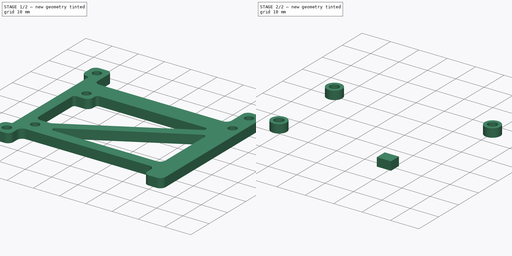
[diagram: build sequence overview — one tinted view per stage of 2, left to right]
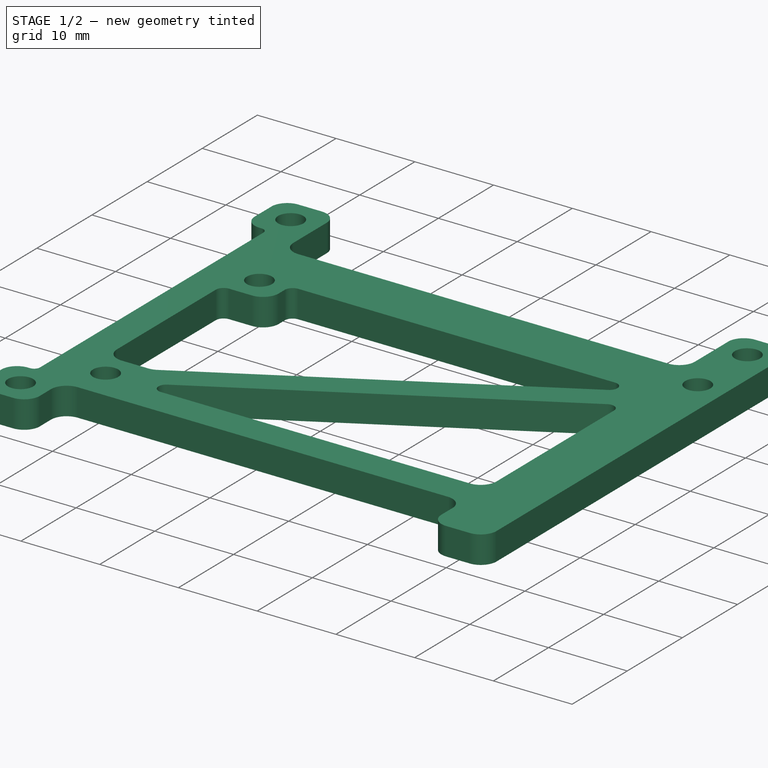
[diagram: stage 1 of 2 — iso view after this stage's code; geometry added in this stage tinted green]
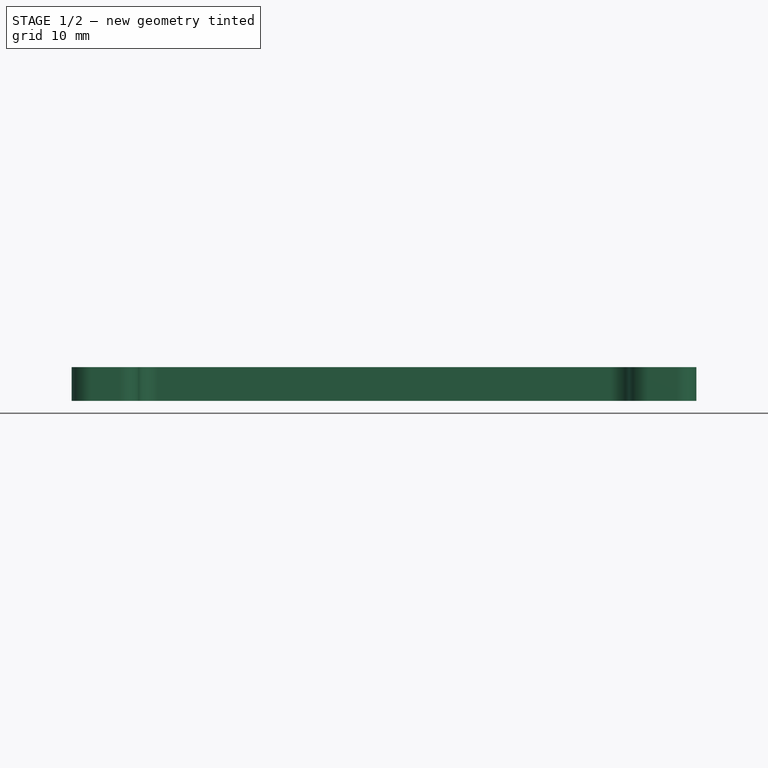
[diagram: stage 1 of 2 — front view after this stage's code; geometry added in this stage tinted green]
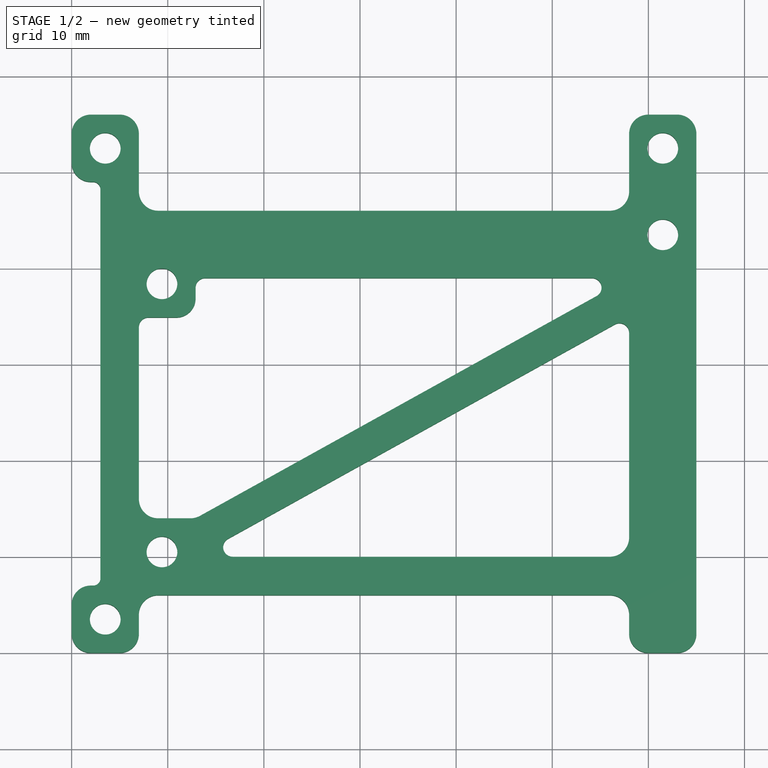
[diagram: stage 1 of 2 — top view after this stage's code; geometry added in this stage tinted green]
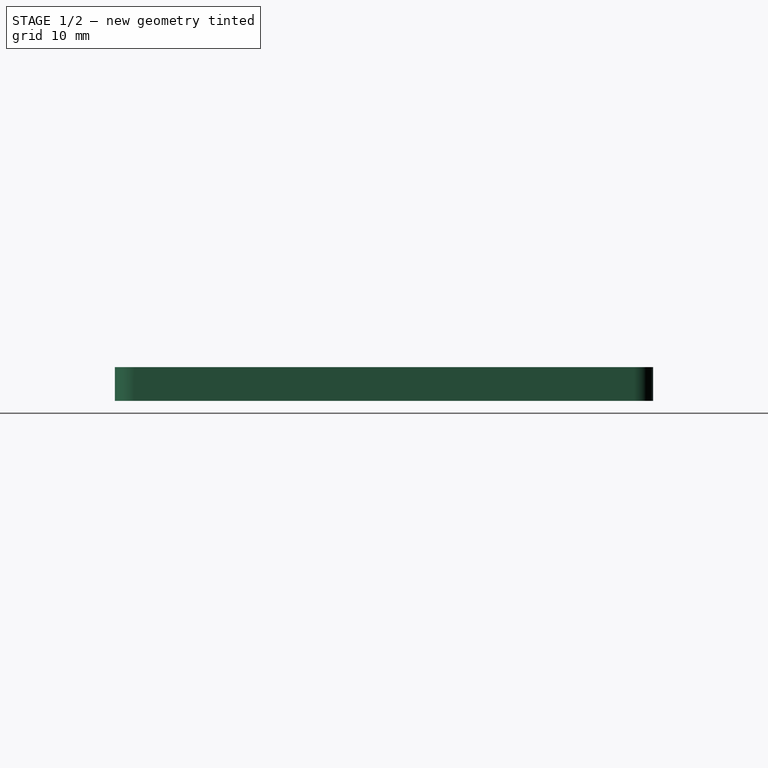
[diagram: stage 1 of 2 — right view after this stage's code; geometry added in this stage tinted green]
FCSTD DOCUMENT  (FreeCAD 0.18R16146 (Git))
Label: raspiMountArduino
License: All rights reserved
LicenseURL: http://en.wikipedia.org/wiki/All_rights_reserved
objects: Sketcher::SketchObject×2, Part::Extrusion×2, Part::Fillet×1
note: 5 computed .brp shape members not serialized (recipe doc carries the construction recipe); baked Part::Feature solids carry a one-line shape summary decoded from their .brp

FEATURE [Sketcher::SketchObject] Sketch
  sketch-geometry (38):
    g0: LineSegment StartX=0 StartY=0 StartZ=0 EndX=7 EndY=0 EndZ=0
    g1: LineSegment StartX=65 StartY=0 StartZ=0 EndX=65 EndY=56 EndZ=0
    g2: LineSegment StartX=65 StartY=56 StartZ=0 EndX=58 EndY=56 EndZ=0
    g3: LineSegment StartX=0 StartY=56 StartZ=0 EndX=0 EndY=49 EndZ=0
    g4: Circle CenterX=3.5 CenterY=3.5 CenterZ=0 NormalX=0 NormalY=0 NormalZ=1 AngleXU=0 Radius=1.6
    g5: LineSegment [constr] StartX=3.5 StartY=52.5 StartZ=0 EndX=61.5 EndY=52.5 EndZ=0
    g6: LineSegment [constr] StartX=61.5 StartY=52.5 StartZ=0 EndX=61.5 EndY=3.5 EndZ=0
    g7: LineSegment [constr] StartX=61.5 StartY=3.5 StartZ=0 EndX=3.5 EndY=3.5 EndZ=0
    g8: LineSegment [constr] StartX=3.5 StartY=3.5 StartZ=0 EndX=3.5 EndY=52.5 EndZ=0
    g9: Circle CenterX=3.5 CenterY=52.5 CenterZ=0 NormalX=0 NormalY=0 NormalZ=1 AngleXU=0 Radius=1.6
    g10: Circle CenterX=61.5 CenterY=52.5 CenterZ=0 NormalX=0 NormalY=0 NormalZ=1 AngleXU=0 Radius=1.6
    g11: Circle [constr] CenterX=61.5 CenterY=3.5 CenterZ=0 NormalX=0 NormalY=0 NormalZ=1 AngleXU=0 Radius=1.6
    g12: LineSegment [constr] StartX=3.5 StartY=46 StartZ=0 EndX=61.5 EndY=46 EndZ=0
    g13: Circle CenterX=61.5 CenterY=43.5 CenterZ=0 NormalX=0 NormalY=0 NormalZ=1 AngleXU=0 Radius=1.6
    g14: Circle CenterX=9.4 CenterY=38.4 CenterZ=0 NormalX=0 NormalY=0 NormalZ=1 AngleXU=0 Radius=1.6
    g15: LineSegment [constr] StartX=9.4 StartY=46 StartZ=0 EndX=9.4 EndY=3.5 EndZ=0
    g16: Circle CenterX=9.4 CenterY=10.5 CenterZ=0 NormalX=0 NormalY=0 NormalZ=1 AngleXU=0 Radius=1.6
    g17: LineSegment StartX=58 StartY=56 StartZ=0 EndX=58 EndY=46 EndZ=0
    g18: LineSegment StartX=58 StartY=46 StartZ=0 EndX=7 EndY=46 EndZ=0
    g19: LineSegment StartX=7 StartY=46 StartZ=0 EndX=7 EndY=56 EndZ=0
    g20: LineSegment StartX=7 StartY=56 StartZ=0 EndX=0 EndY=56 EndZ=0
    g21: LineSegment StartX=12.9 StartY=39 StartZ=0 EndX=12.9 EndY=34.9 EndZ=0
    g22: LineSegment StartX=12.9 StartY=39 StartZ=0 EndX=58 EndY=39 EndZ=0
    g23: LineSegment StartX=12.9 StartY=14 StartZ=0 EndX=58 EndY=39 EndZ=0
    g24: LineSegment StartX=58 StartY=10 StartZ=0 EndX=58 EndY=35 EndZ=0
    g25: LineSegment StartX=58 StartY=10 StartZ=0 EndX=12.9 EndY=10 EndZ=0
    g26: LineSegment StartX=58 StartY=35 StartZ=0 EndX=12.9 EndY=10 EndZ=0
    g27: LineSegment StartX=12.9 StartY=14 StartZ=0 EndX=7 EndY=14 EndZ=0
    g28: LineSegment StartX=7 StartY=14 StartZ=0 EndX=7 EndY=34.9 EndZ=0
    g29: LineSegment StartX=7 StartY=34.9 StartZ=0 EndX=12.9 EndY=34.9 EndZ=0
    g30: LineSegment StartX=58 StartY=0 StartZ=0 EndX=58 EndY=6 EndZ=0
    g31: LineSegment StartX=58 StartY=6 StartZ=0 EndX=7 EndY=6 EndZ=0
    g32: LineSegment StartX=7 StartY=6 StartZ=0 EndX=7 EndY=0 EndZ=0
    g33: LineSegment StartX=58 StartY=0 StartZ=0 EndX=65 EndY=0 EndZ=0
    g34: LineSegment StartX=0 StartY=49 StartZ=0 EndX=3 EndY=49 EndZ=0
    g35: LineSegment StartX=3 StartY=49 StartZ=0 EndX=3 EndY=7 EndZ=0
    g36: LineSegment StartX=3 StartY=7 StartZ=0 EndX=0 EndY=7 EndZ=0
    g37: LineSegment StartX=0 StartY=7 StartZ=0 EndX=0 EndY=0 EndZ=0
  constraints (108):
    c: Coincident(g33,g1)
    c: Coincident(g1,g2)
    c: Coincident(g20,g3)
    c: Coincident(g37,g0)
    c: Horizontal(g0)
    c: Horizontal(g2)
    c: Vertical(g1)
    c: Vertical(g3)
    c: Coincident(g0,g-1)
    c: Radius(g4) = 1.6
    c: Coincident(g5,g6)
    c: Coincident(g6,g7)
    c: Coincident(g7,g8)
    c: Coincident(g8,g5)
    c: Horizontal(g5)
    c: Horizontal(g7)
    c: Vertical(g6)
    c: Vertical(g8)
    c: Distance(g7,g3) = 3.5
    c: Distance(g5,g2) = 3.5
    c: Coincident(g4,g7)
    c: Equal(g4,g9) = 1.6
    c: Coincident(g9,g5)
    c: Equal(g4,g10) = 1.6
    c: Coincident(g10,g5)
    c: Equal(g4,g11) = 1.6
    c: Coincident(g6,g11)
    c: Distance(g8) = 49
    c: Horizontal(g12)
    c: Equal(g4,g13) = 1.6
    c: Distance(g13,g12) = 2.5
    c: PointOnObject(g13,g6)
    c: Equal(g4,g14) = 1.6
    c: Distance(g14,g12) = 7.6
    c: Distance(g5) = 58
    c: PointOnObject(g12,g8)
    c: PointOnObject(g12,g6)
    c: Distance(g12,g2) = 10
    c: PointOnObject(g15,g12)
    c: PointOnObject(g15,g7)
    c: Vertical(g15)
    c: Distance(g15,g6) = 52.1
    c: PointOnObject(g14,g15)
    c: Equal(g4,g16) = 1.6
    c: PointOnObject(g16,g15)
    c: Distance(g16,g14) = 27.9
    c: Coincident(g17,g18)
    c: Coincident(g18,g19)
    c: Horizontal(g18)
    c: Vertical(g17)
    c: Vertical(g19)
    c: PointOnObject(g17,g12)
    c: Distance(g19,g3) = 7
    c: Distance(g10,g17) = 3.5
    c: Tangent(g2,g20)
    c: Distance(g6,g1) = 3.5
    c: Distance(g4,g0) = 3.5
    c: Coincident(g20,g19)
    c: Coincident(g17,g2)
    c: Vertical(g21)
    c: Coincident(g22,g21)
    c: Horizontal(g22)
    c: Coincident(g23,g22)
    c: Vertical(g24)
    c: Coincident(g25,g24)
    c: Horizontal(g25)
    c: Coincident(g26,g24)
    c: Coincident(g26,g25)
    c: Distance(g24) = 25
    c: Distance(g21,g15) = 3.5
    c: Distance(g25,g15) = 3.5
    c: Distance(g22,g6) = 3.5
    c: Distance(g24,g6) = 3.5
    c: Distance(g21,g18) = 7
    c: Distance(g24,g0) = 10
    c: Coincident(g27,g28)
    c: Coincident(g28,g29)
    c: Horizontal(g27)
    c: Horizontal(g29)
    c: Vertical(g28)
    c: Coincident(g27,g23)
    c: Distance(g28,g3) = 7
    c: Distance(g16,g27) = 3.5
    c: Distance(g14,g29) = 3.5
    c: Coincident(g21,g29)
    c: Equal(g23,g26)
    c: Coincident(g30,g31)
    c: Coincident(g31,g32)
    c: Horizontal(g31)
    c: Vertical(g30)
    c: Vertical(g32)
    c: Distance(g4,g32) = 3.5
    c: Distance(g6,g30) = 3.5
    c: Tangent(g0,g33)
    c: Coincident(g0,g32)
    c: Coincident(g30,g33)
    c: Distance(g30) = 6
    c: Coincident(g34,g35)
    c: Coincident(g35,g36)
    c: Horizontal(g34)
    c: Horizontal(g36)
    c: Vertical(g35)
    c: Distance(g35,g28) = 4
    c: Distance(g36,g0) = 7
    c: Coincident(g3,g34)
    c: Tangent(g3,g37)
    c: Distance(g3) = 7
    c: Coincident(g36,g37)
FEATURE [Part::Extrusion] Extrude
  Base = -> Sketch
  Dir = (0,0,1)
  DirMode = 2
  FaceMakerClass = Part::FaceMakerBullseye
  LengthFwd = 3.5
  LengthRev = 0
  Solid = true
  Symmetric = false
FEATURE [Part::Fillet] Fillet
  Base = -> Extrude
  Edges = 25 edges: [Edge1 r=2,Edge2 r=2,Edge5 r=2,Edge8 r=2,Edge11 r=2,Edge14 r=2,Edge17 r=2,Edge20 r=2,Edge23 r=2,Edge26 r=0.75,Edge29 r=0.75,Edge32 r=2,Edge35 r=2,Edge38 r=2,Edge41 r=2,Edge44 r=2,Edge49 r=2,Edge50 r=2,Edge53 r=1,Edge56 r=1,Edge59 r=2,Edge62 r=1,Edge67 r=2,Edge68 r=1,Edge71 r=1]
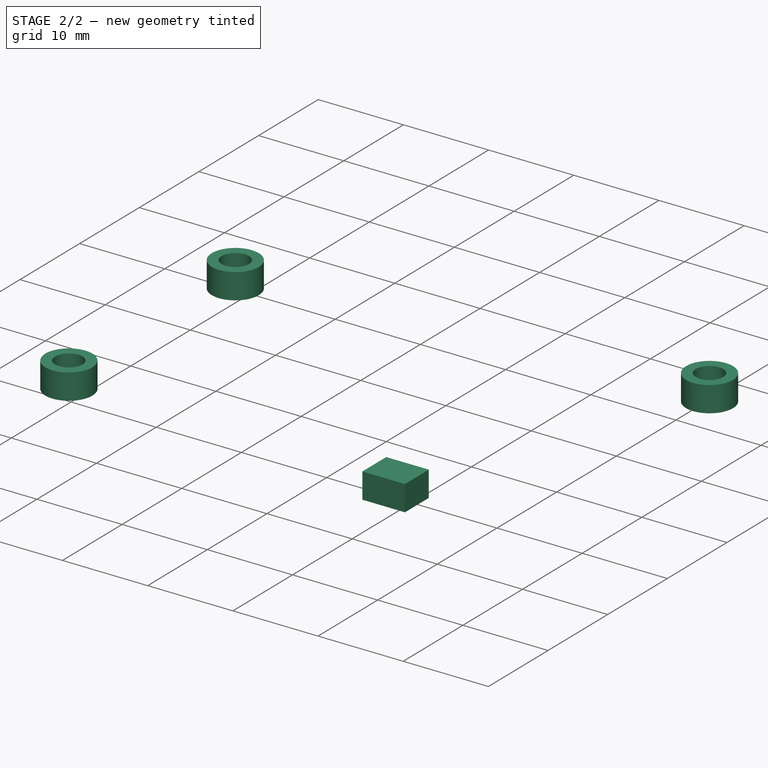
[diagram: stage 2 of 2 — iso view after this stage's code; geometry added in this stage tinted green]
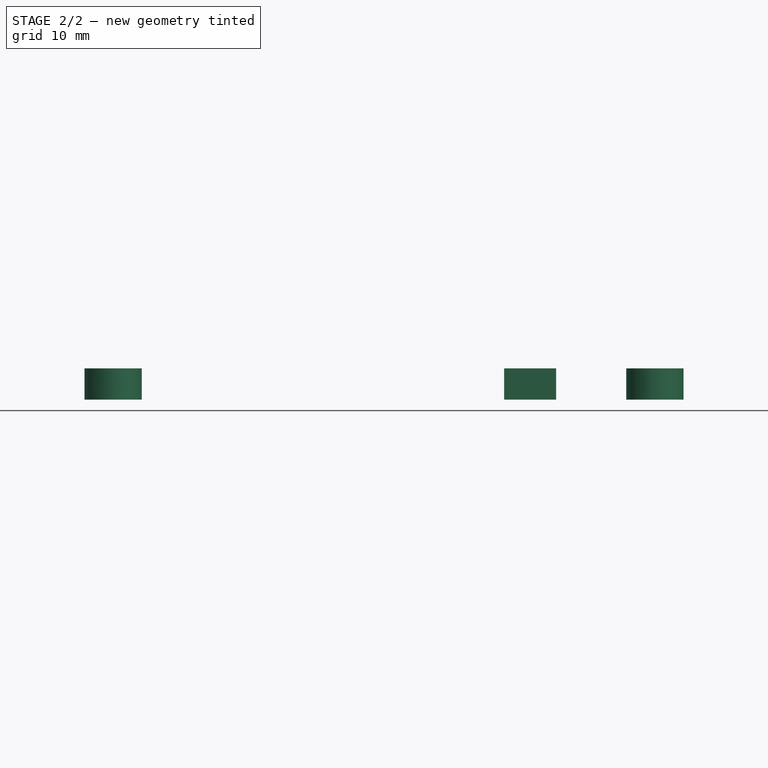
[diagram: stage 2 of 2 — front view after this stage's code; geometry added in this stage tinted green]
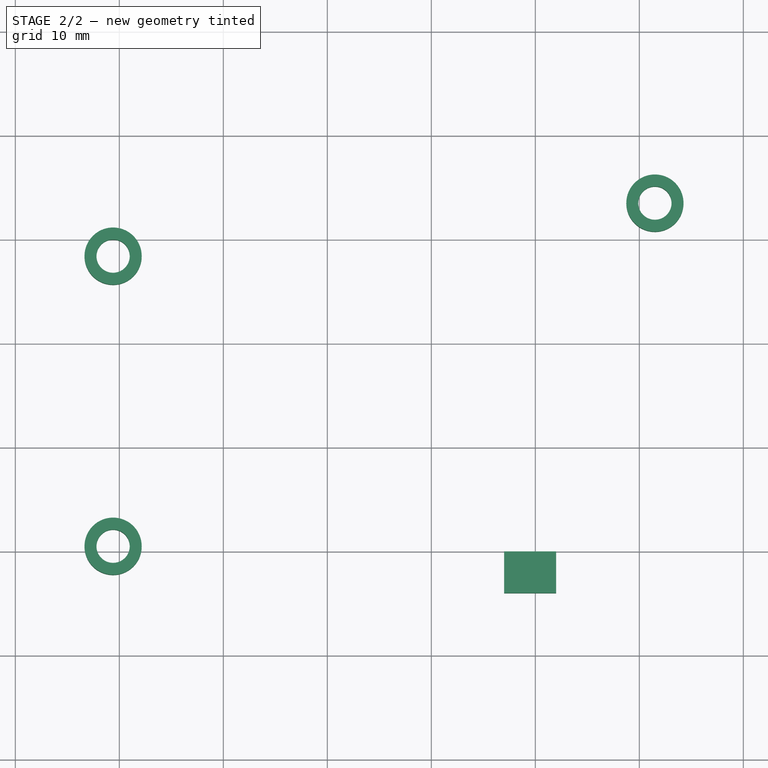
[diagram: stage 2 of 2 — top view after this stage's code; geometry added in this stage tinted green]
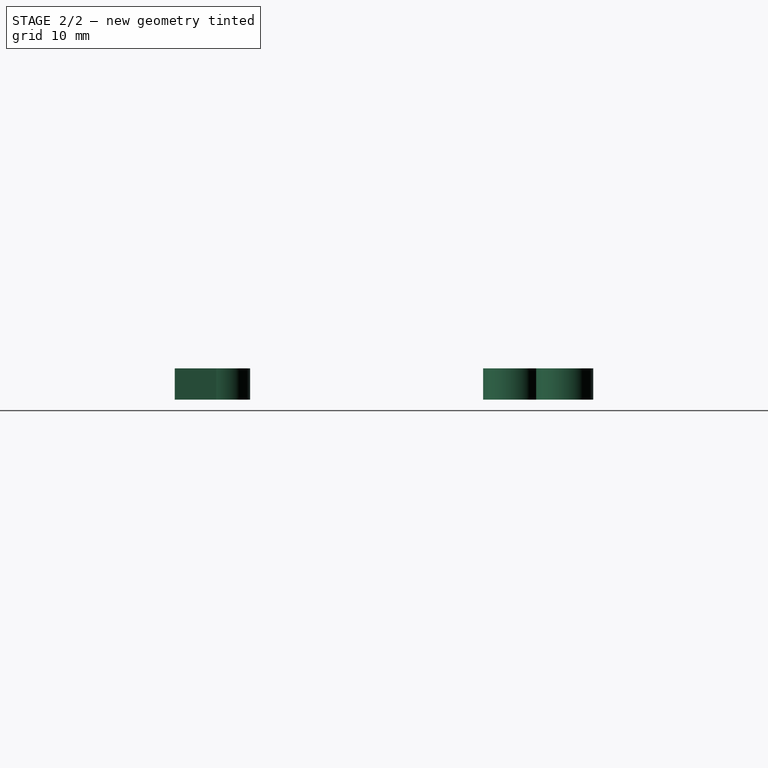
[diagram: stage 2 of 2 — right view after this stage's code; geometry added in this stage tinted green]
FEATURE [Sketcher::SketchObject] Sketch001
  ExternalGeometry = -> [Fillet]
  MapMode = 5
  Placement = pos=(0,0,3.5) rot=(0,0,1;0rad)
  Support = -> [Fillet]
  sketch-geometry (10):
    g0: Circle CenterX=9.4 CenterY=38.4 CenterZ=0 NormalX=0 NormalY=0 NormalZ=1 AngleXU=0 Radius=2.75
    g1: Circle CenterX=9.4 CenterY=38.4 CenterZ=0 NormalX=0 NormalY=0 NormalZ=1 AngleXU=0 Radius=1.6
    g2: Circle CenterX=61.5 CenterY=43.5 CenterZ=0 NormalX=0 NormalY=0 NormalZ=1 AngleXU=0 Radius=2.75
    g3: Circle CenterX=61.5 CenterY=43.5 CenterZ=0 NormalX=0 NormalY=0 NormalZ=1 AngleXU=0 Radius=1.6
    g4: Circle CenterX=9.4 CenterY=10.5 CenterZ=0 NormalX=0 NormalY=0 NormalZ=1 AngleXU=0 Radius=2.75
    g5: Circle CenterX=9.4 CenterY=10.5 CenterZ=0 NormalX=0 NormalY=0 NormalZ=1 AngleXU=0 Radius=1.6
    g6: LineSegment StartX=47 StartY=6 StartZ=0 EndX=52 EndY=6 EndZ=0
    g7: LineSegment StartX=52 StartY=6 StartZ=0 EndX=52 EndY=10 EndZ=0
    g8: LineSegment StartX=52 StartY=10 StartZ=0 EndX=47 EndY=10 EndZ=0
    g9: LineSegment StartX=47 StartY=10 StartZ=0 EndX=47 EndY=6 EndZ=0
  constraints (24):
    c: Radius(g0) = 2.75
    c: Coincident(g0,g-3)
    c: Coincident(g1,g0)
    c: Equal(g1,g-3)
    c: Equal(g0,g2) = 2.75
    c: Coincident(g3,g2)
    c: Equal(g0,g4) = 2.75
    c: Coincident(g5,g4)
    c: Coincident(g2,g-4)
    c: Coincident(g4,g-5)
    c: Coincident(g6,g7)
    c: Coincident(g7,g8)
    c: Coincident(g8,g9)
    c: Coincident(g9,g6)
    c: Horizontal(g6)
    c: Horizontal(g8)
    c: Vertical(g7)
    c: Vertical(g9)
    c: PointOnObject(g6,g-6)
    c: PointOnObject(g7,g-8)
    c: Distance(g6,g-7) = 13
    c: Distance(g8) = 5
    c: Equal(g5,g-5)
    c: Equal(g3,g-4)
FEATURE [Part::Extrusion] Extrude001
  Base = -> Sketch001
  Dir = (0,0,1)
  DirMode = 2
  FaceMakerClass = Part::FaceMakerBullseye
  LengthFwd = 3
  LengthRev = 0
  Solid = true
  Symmetric = false
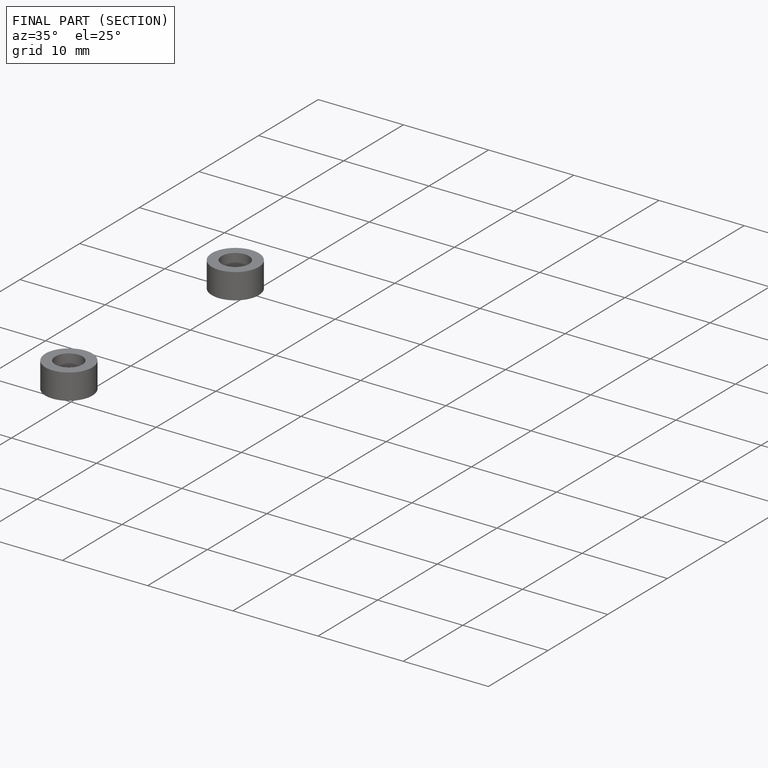
[diagram: finished part — half-section view (interior)]
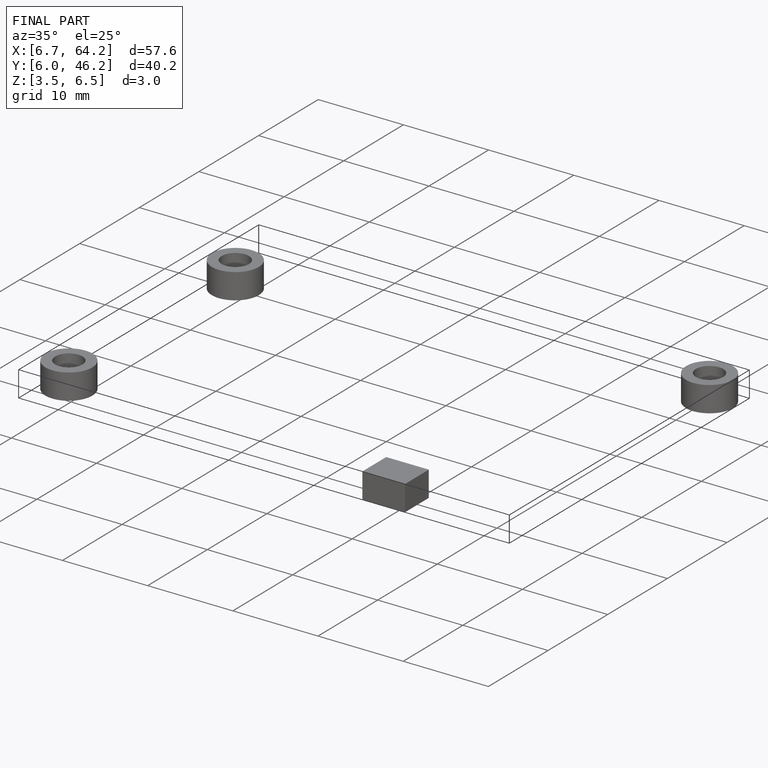
[diagram: finished part — iso view with bounding-box wireframe]
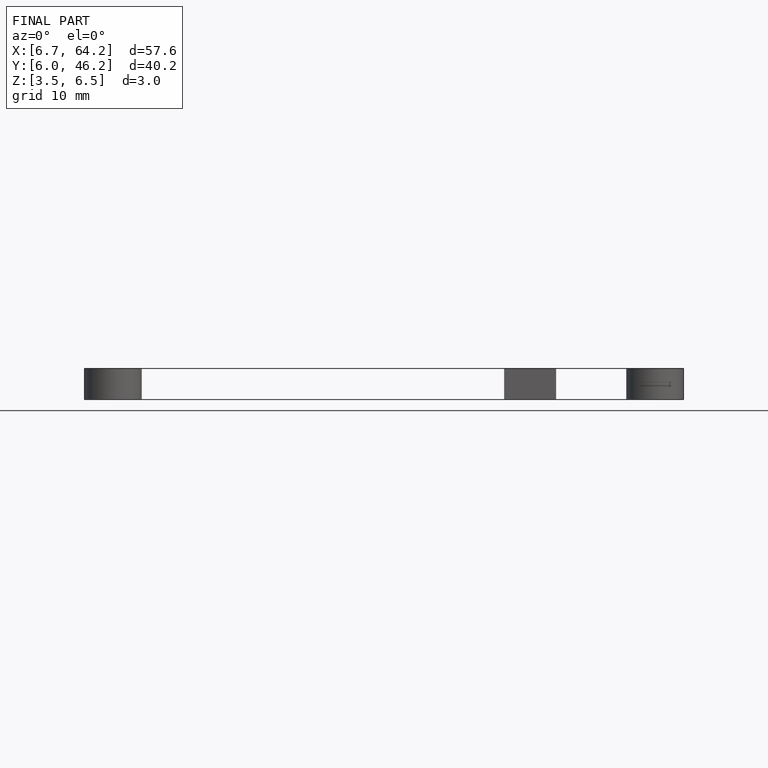
[diagram: finished part — front view with bounding-box wireframe]
